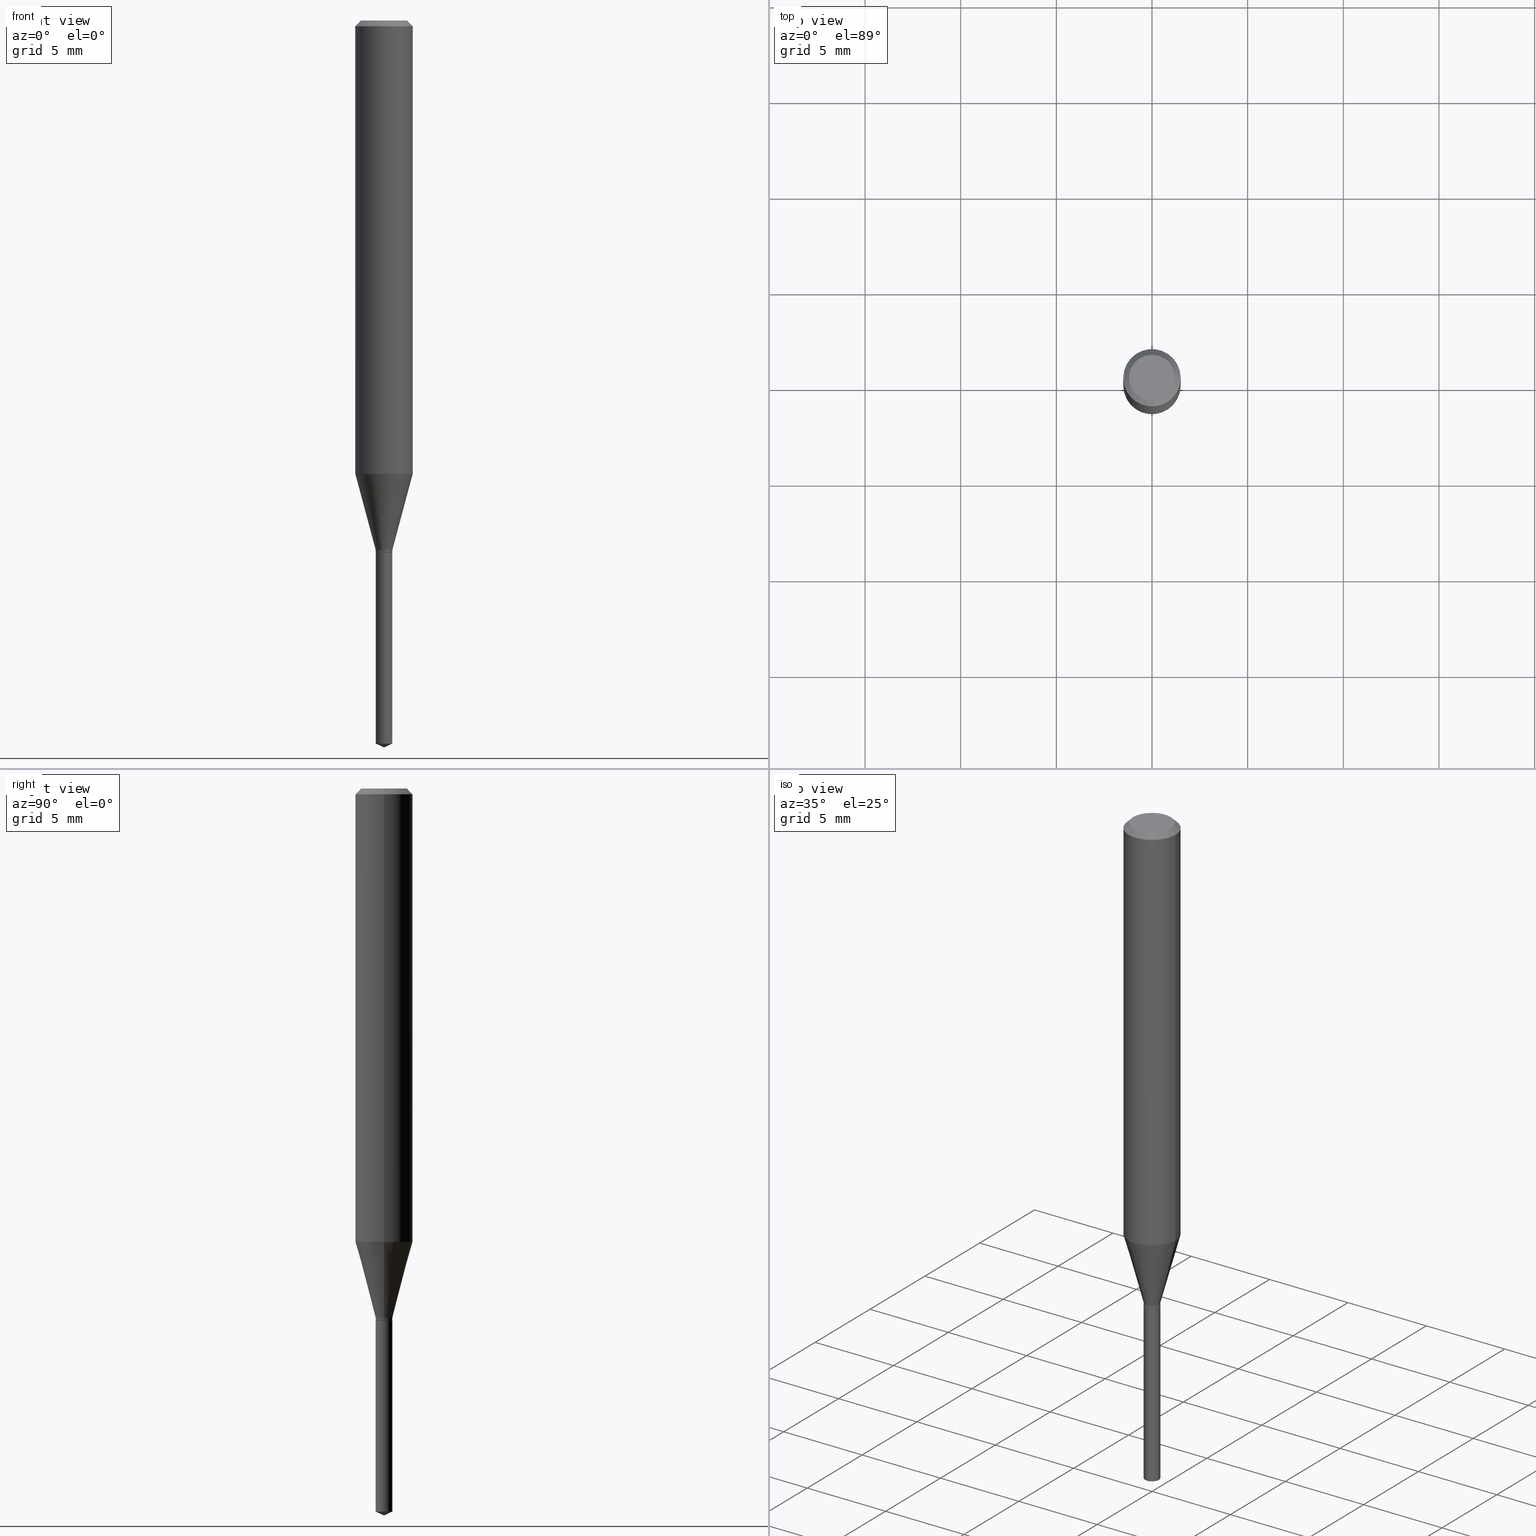
[diagram: canonical four-view strip — front | top / right | iso, engineering-drawing reading convention]
A machine part, canonical four-view strip (front | top / right | iso — engineering-drawing reading convention). The complete STEP part file that produces these views, byte-faithful:
ISO-10303-21;
HEADER;
FILE_DESCRIPTION (( 'STEP AP203' ),
    '1' );
FILE_NAME ('07465.STEP',
    '2024-04-23T21:44:41',
    ( '' ),
    ( '' ),
    'SwSTEP 2.0',
    'SolidWorks 2023',
    '' );
FILE_SCHEMA (( 'CONFIG_CONTROL_DESIGN' ));
ENDSEC;

DATA;
#1 = EDGE_LOOP ( 'NONE', ( #55, #355 ) ) ;
#2 = AXIS2_PLACEMENT_3D ( 'NONE', #422, #232, #120 ) ;
#3 = CONICAL_SURFACE ( 'NONE', #69, 0.01714999999999999858, 0.2617993877991500740 ) ;
#4 = FACE_OUTER_BOUND ( 'NONE', #215, .T. ) ;
#5 = FACE_OUTER_BOUND ( 'NONE', #1, .T. ) ;
#6 = CALENDAR_DATE ( 2024, 23, 4 ) ;
#7 = CYLINDRICAL_SURFACE ( 'NONE', #428, 0.05905000000000005383 ) ;
#8 = EDGE_CURVE ( 'NONE', #467, #331, #358, .T. ) ;
#9 = VECTOR ( 'NONE', #236, 39.37007874015747433 ) ;
#10 = VECTOR ( 'NONE', #401, 39.37007874015748143 ) ;
#11 = DIRECTION ( 'NONE',  ( 1.000000000000000000, -6.982962677686279332E-15, 0.000000000000000000 ) ) ;
#12 = CARTESIAN_POINT ( 'NONE',  ( -0.01714999999999999858, -3.689792098432204393E-15, -1.089399999999999924 ) ) ;
#13 = ORIENTED_EDGE ( 'NONE', *, *, #352, .F. ) ;
#14 = ADVANCED_FACE ( 'NONE', ( #264 ), #256, .T. ) ;
#15 = DIRECTION ( 'NONE',  ( -6.982962677686266711E-15, -1.000000000000000000, 3.520397390770495680E-15 ) ) ;
#16 = VERTEX_POINT ( 'NONE', #192 ) ;
#17 = FACE_OUTER_BOUND ( 'NONE', #342, .T. ) ;
#18 = ORIENTED_EDGE ( 'NONE', *, *, #30, .F. ) ;
#19 = FACE_OUTER_BOUND ( 'NONE', #60, .T. ) ;
#20 = ORIENTED_EDGE ( 'NONE', *, *, #231, .F. ) ;
#21 = DIRECTION ( 'NONE',  ( -2.445468806185136597E-29, 3.491481338843145583E-15, 1.000000000000000000 ) ) ;
#22 = ORIENTED_EDGE ( 'NONE', *, *, #274, .F. ) ;
#23 = LINE ( 'NONE', #58, #78 ) ;
#24 = ORIENTED_EDGE ( 'NONE', *, *, #454, .F. ) ;
#25 = AXIS2_PLACEMENT_3D ( 'NONE', #191, #67, #417 ) ;
#26 = CIRCLE ( 'NONE', #140, 0.01714999999999999858 ) ;
#27 = DATE_TIME_ROLE ( 'creation_date' ) ;
#28 = ORIENTED_EDGE ( 'NONE', *, *, #180, .T. ) ;
#29 = DESIGN_CONTEXT ( 'detailed design', #99, 'design' ) ;
#30 = EDGE_CURVE ( 'NONE', #283, #250, #184, .T. ) ;
#31 = DIRECTION ( 'NONE',  ( -2.445468806185136597E-29, 3.491481338843145583E-15, 1.000000000000000000 ) ) ;
#32 = LINE ( 'NONE', #185, #280 ) ;
#33 = DIRECTION ( 'NONE',  ( 1.000000000000000000, -6.982962677686279332E-15, 0.000000000000000000 ) ) ;
#34 = FACE_OUTER_BOUND ( 'NONE', #174, .T. ) ;
#35 = AXIS2_PLACEMENT_3D ( 'NONE', #419, #166, #463 ) ;
#36 = LOCAL_TIME ( 17, 44, 41.00000000000000000, #260 ) ;
#37 = CARTESIAN_POINT ( 'NONE',  ( 2.664093717458087237E-29, -3.803619770535721859E-15, -1.089399999999999924 ) ) ;
#38 = PLANE ( 'NONE',  #25 ) ;
#39 = ADVANCED_BREP_SHAPE_REPRESENTATION ( '07465', ( #103, #94, #248 ), #436 ) ;
#40 = EDGE_CURVE ( 'NONE', #250, #118, #219, .T. ) ;
#41 = DIRECTION ( 'NONE',  ( 1.000000000000000000, -6.982962677686278543E-15, 0.000000000000000000 ) ) ;
#42 = CARTESIAN_POINT ( 'NONE',  ( 2.888098660104663328E-31, -4.123439461173779030E-17, -0.01181000000000006871 ) ) ;
#43 = AXIS2_PLACEMENT_3D ( 'NONE', #381, #150, #41 ) ;
#44 = DIRECTION ( 'NONE',  ( 1.000000000000000000, -6.982962677686278543E-15, 0.000000000000000000 ) ) ;
#45 = ADVANCED_FACE ( 'NONE', ( #110 ), #338, .T. ) ;
#46 = CARTESIAN_POINT ( 'NONE',  ( -9.261968845786000133E-28, 1.322362114038720264E-13, 37.87397874015748300 ) ) ;
#47 = DIRECTION ( 'NONE',  ( 2.438088387897960049E-29, -3.491481338843145188E-15, -1.000000000000000000 ) ) ;
#48 = PRODUCT_RELATED_PRODUCT_CATEGORY ( 'detail', '', ( #125 ) ) ;
#49 = AXIS2_PLACEMENT_3D ( 'NONE', #42, #348, #456 ) ;
#50 = LOCAL_TIME ( 17, 44, 41.00000000000000000, #388 ) ;
#51 = DIRECTION ( 'NONE',  ( -2.445468806185136597E-29, 3.491481338843145583E-15, 1.000000000000000000 ) ) ;
#52 = VERTEX_POINT ( 'NONE', #147 ) ;
#53 = ADVANCED_FACE ( 'NONE', ( #307 ), #38, .F. ) ;
#54 = DIRECTION ( 'NONE',  ( 1.000000000000000000, -6.982962677686267499E-15, 0.000000000000000000 ) ) ;
#55 = ORIENTED_EDGE ( 'NONE', *, *, #437, .T. ) ;
#56 = LINE ( 'NONE', #128, #290 ) ;
#57 = ORIENTED_EDGE ( 'NONE', *, *, #367, .T. ) ;
#58 = CARTESIAN_POINT ( 'NONE',  ( -0.05905000000000005383, 4.195754854663395423E-16, -2.904631170795524694E-30 ) ) ;
#59 = VECTOR ( 'NONE', #245, 39.37007874015748143 ) ;
#60 = EDGE_LOOP ( 'NONE', ( #134, #105 ) ) ;
#61 = DIRECTION ( 'NONE',  ( -6.328713451373360701E-15, -0.9063077870366472721, 0.4226182617407052144 ) ) ;
#62 = CC_DESIGN_PERSON_AND_ORGANIZATION_ASSIGNMENT ( #225, #374, ( #329 ) ) ;
#63 = ORIENTED_EDGE ( 'NONE', *, *, #332, .F. ) ;
#64 = CARTESIAN_POINT ( 'NONE',  ( 0.05904999999999999832, -4.463468013801466955E-16, -0.01181000000000006871 ) ) ;
#65 = ORIENTED_EDGE ( 'NONE', *, *, #303, .F. ) ;
#66 = DATE_AND_TIME ( #253, #235 ) ;
#67 = DIRECTION ( 'NONE',  ( -2.438088387897960049E-29, 3.491481338843145188E-15, 1.000000000000000000 ) ) ;
#68 = AXIS2_PLACEMENT_3D ( 'NONE', #451, #79, #379 ) ;
#69 = AXIS2_PLACEMENT_3D ( 'NONE', #176, #471, #104 ) ;
#70 = ADVANCED_FACE ( 'NONE', ( #119 ), #154, .T. ) ;
#71 = APPROVAL_DATE_TIME ( #255, #151 ) ;
#72 = ORIENTED_EDGE ( 'NONE', *, *, #490, .T. ) ;
#73 = APPROVAL_STATUS ( 'not_yet_approved' ) ;
#74 = CARTESIAN_POINT ( 'NONE',  ( 2.676565608369631794E-29, -3.821426325363822773E-15, -1.094499999999999806 ) ) ;
#75 =( LENGTH_UNIT ( ) NAMED_UNIT ( * ) SI_UNIT ( $, .METRE. ) );
#76 = ORIENTED_EDGE ( 'NONE', *, *, #289, .T. ) ;
#77 = CIRCLE ( 'NONE', #452, 0.01715000000000000205 ) ;
#78 = VECTOR ( 'NONE', #181, 39.37007874015748143 ) ;
#79 = DIRECTION ( 'NONE',  ( -2.445468806185136597E-29, 3.491481338843145583E-15, 1.000000000000000000 ) ) ;
#80 = DIRECTION ( 'NONE',  ( -2.445468806185136597E-29, 3.491481338843145583E-15, 1.000000000000000000 ) ) ;
#81 = FACE_OUTER_BOUND ( 'NONE', #408, .T. ) ;
#82 = CC_DESIGN_DATE_AND_TIME_ASSIGNMENT ( #386, #86, ( #117 ) ) ;
#83 = CONICAL_SURFACE ( 'NONE', #343, 0.01714999999999999858, 0.2617993877991500740 ) ;
#84 = FACE_OUTER_BOUND ( 'NONE', #294, .T. ) ;
#85 = CARTESIAN_POINT ( 'NONE',  ( 0.000000000000000000, 0.000000000000000000, 0.000000000000000000 ) ) ;
#86 = DATE_TIME_ROLE ( 'classification_date' ) ;
#87 = DIRECTION ( 'NONE',  ( -6.982962677686266711E-15, -1.000000000000000000, 0.000000000000000000 ) ) ;
#88 = CC_DESIGN_PERSON_AND_ORGANIZATION_ASSIGNMENT ( #478, #304, ( #125 ) ) ;
#89 = VECTOR ( 'NONE', #336, 39.37007874015747433 ) ;
#90 = DIRECTION ( 'NONE',  ( -2.445470214571802116E-29, 3.491479321953280158E-15, 1.000000000000000000 ) ) ;
#91 = DIMENSIONAL_EXPONENTS ( 1.000000000000000000, 0.000000000000000000, 0.000000000000000000, 0.000000000000000000, 0.000000000000000000, 0.000000000000000000, 0.000000000000000000 ) ;
#92 = FACE_OUTER_BOUND ( 'NONE', #472, .T. ) ;
#93 = VERTEX_POINT ( 'NONE', #371 ) ;
#94 = MANIFOLD_SOLID_BREP ( 'Body-Move/Copy2[2]', #247 ) ;
#95 = CARTESIAN_POINT ( 'NONE',  ( 0.04724000000000000421, -3.852183633974369345E-16, -3.380025165621689721E-19 ) ) ;
#96 = ORIENTED_EDGE ( 'NONE', *, *, #361, .F. ) ;
#97 = EDGE_CURVE ( 'NONE', #118, #132, #373, .T. ) ;
#98 = CARTESIAN_POINT ( 'NONE',  ( 8.265746106709734507E-48, -1.180129479067563789E-33, -3.380025165646692144E-19 ) ) ;
#99 = APPLICATION_CONTEXT ( 'configuration controlled 3d designs of mechanical parts and assemblies' ) ;
#100 = CIRCLE ( 'NONE', #257, 0.04724000000000000421 ) ;
#101 = ORIENTED_EDGE ( 'NONE', *, *, #484, .T. ) ;
#102 = AXIS2_PLACEMENT_3D ( 'NONE', #393, #356, #227 ) ;
#103 = MANIFOLD_SOLID_BREP ( 'Body-Move/Copy2[1]', #129 ) ;
#104 = DIRECTION ( 'NONE',  ( 1.000000000000000000, -6.982962677686279332E-15, 0.000000000000000000 ) ) ;
#105 = ORIENTED_EDGE ( 'NONE', *, *, #395, .T. ) ;
#106 = ORIENTED_EDGE ( 'NONE', *, *, #279, .F. ) ;
#107 = CALENDAR_DATE ( 2024, 23, 4 ) ;
#108 = CARTESIAN_POINT ( 'NONE',  ( -1.197578099222926869E-16, -0.01715000000000382191, -1.094499999999999806 ) ) ;
#109 = AXIS2_PLACEMENT_3D ( 'NONE', #469, #21, #278 ) ;
#110 = FACE_OUTER_BOUND ( 'NONE', #320, .T. ) ;
#111 = UNCERTAINTY_MEASURE_WITH_UNIT (LENGTH_MEASURE( 1.000000000000000082E-05 ), #295, 'distance_accuracy_value', 'NONE');
#112 = DATE_AND_TIME ( #448, #36 ) ;
#113 = DIRECTION ( 'NONE',  ( 1.000000000000000000, -6.982962677686266711E-15, 4.876176775795935793E-29 ) ) ;
#114 = EDGE_CURVE ( 'NONE', #153, #177, #443, .T. ) ;
#115 = ORIENTED_EDGE ( 'NONE', *, *, #114, .T. ) ;
#116 = CIRCLE ( 'NONE', #2, 0.01714999999999999858 ) ;
#117 = SECURITY_CLASSIFICATION ( '', '', #200 ) ;
#118 = VERTEX_POINT ( 'NONE', #258 ) ;
#119 = FACE_OUTER_BOUND ( 'NONE', #357, .T. ) ;
#120 = DIRECTION ( 'NONE',  ( -6.982962677686266711E-15, -1.000000000000000000, 0.000000000000000000 ) ) ;
#121 = EDGE_CURVE ( 'NONE', #331, #283, #32, .T. ) ;
#122 = PERSON_AND_ORGANIZATION_ROLE ( 'classification_officer' ) ;
#123 = CARTESIAN_POINT ( 'NONE',  ( 8.265746106709734507E-48, -1.180129479067563789E-33, -3.380025165646692144E-19 ) ) ;
#124 = FACE_OUTER_BOUND ( 'NONE', #254, .T. ) ;
#125 = PRODUCT ( '07465', '07465', '', ( #404 ) ) ;
#126 = ADVANCED_FACE ( 'NONE', ( #34 ), #410, .T. ) ;
#127 = DIRECTION ( 'NONE',  ( -6.982962677686266711E-15, -1.000000000000000000, 0.000000000000000000 ) ) ;
#128 = CARTESIAN_POINT ( 'NONE',  ( 1.218580791828839191E-16, 0.01714999999999617525, -1.094499999999999806 ) ) ;
#129 = CLOSED_SHELL ( 'NONE', ( #266, #193, #346, #126, #424 ) ) ;
#130 = AXIS2_PLACEMENT_3D ( 'NONE', #427, #90, #360 ) ;
#131 = CARTESIAN_POINT ( 'NONE',  ( -9.261968845786000133E-28, 1.322362114038720264E-13, 37.87397874015748300 ) ) ;
#132 = VERTEX_POINT ( 'NONE', #311 ) ;
#133 = DIRECTION ( 'NONE',  ( 2.445470214571801836E-29, -3.491479321953280158E-15, -1.000000000000000000 ) ) ;
#134 = ORIENTED_EDGE ( 'NONE', *, *, #135, .T. ) ;
#135 = EDGE_CURVE ( 'NONE', #177, #241, #195, .T. ) ;
#136 = CARTESIAN_POINT ( 'NONE',  ( 2.676565608369631794E-29, -3.821426325363822773E-15, -1.094499999999999806 ) ) ;
#137 = EDGE_LOOP ( 'NONE', ( #218, #186, #285 ) ) ;
#138 = LINE ( 'NONE', #64, #59 ) ;
#139 = AXIS2_PLACEMENT_3D ( 'NONE', #270, #316, #87 ) ;
#140 = AXIS2_PLACEMENT_3D ( 'NONE', #415, #380, #488 ) ;
#141 = ORIENTED_EDGE ( 'NONE', *, *, #135, .F. ) ;
#142 = EDGE_CURVE ( 'NONE', #325, #93, #309, .T. ) ;
#143 = LENGTH_MEASURE_WITH_UNIT ( LENGTH_MEASURE( 0.02539999999999999897 ), #75 );
#144 = ORIENTED_EDGE ( 'NONE', *, *, #237, .F. ) ;
#145 = APPROVAL ( #239, 'UNSPECIFIED' ) ;
#146 = ORIENTED_EDGE ( 'NONE', *, *, #340, .F. ) ;
#147 = CARTESIAN_POINT ( 'NONE',  ( 0.01714999999999999858, -3.923377580458041737E-15, -1.089399999999999924 ) ) ;
#148 = AXIS2_PLACEMENT_3D ( 'NONE', #277, #425, #205 ) ;
#149 = DIRECTION ( 'NONE',  ( 0.000000000000000000, 0.000000000000000000, 1.000000000000000000 ) ) ;
#150 = DIRECTION ( 'NONE',  ( -2.445468806185136597E-29, 3.491481338843145583E-15, 1.000000000000000000 ) ) ;
#151 = APPROVAL ( #73, 'UNSPECIFIED' ) ;
#152 = CARTESIAN_POINT ( 'NONE',  ( 0.000000000000000000, 0.000000000000000000, 0.000000000000000000 ) ) ;
#153 = VERTEX_POINT ( 'NONE', #464 ) ;
#154 = CONICAL_SURFACE ( 'NONE', #351, 0.05904999999999999832, 0.7853981633974452814 ) ;
#155 = APPROVAL_PERSON_ORGANIZATION ( #301, #403, #450 ) ;
#156 = EDGE_CURVE ( 'NONE', #292, #325, #203, .T. ) ;
#157 = DIRECTION ( 'NONE',  ( -2.445468806185136597E-29, 3.491481338843145583E-15, 1.000000000000000000 ) ) ;
#158 = COORDINATED_UNIVERSAL_TIME_OFFSET ( 5, 0, .BEHIND. ) ;
#159 = FACE_OUTER_BOUND ( 'NONE', #137, .T. ) ;
#160 = APPLICATION_CONTEXT ( 'configuration controlled 3d designs of mechanical parts and assemblies' ) ;
#161 = PERSON_AND_ORGANIZATION_ROLE ( 'design_supplier' ) ;
#162 = DIRECTION ( 'NONE',  ( -2.445468806185136597E-29, 3.491481338843145583E-15, 1.000000000000000000 ) ) ;
#163 = ORIENTED_EDGE ( 'NONE', *, *, #237, .T. ) ;
#164 = AXIS2_PLACEMENT_3D ( 'NONE', #384, #51, #44 ) ;
#165 = CIRCLE ( 'NONE', #445, 0.01714999999999999858 ) ;
#166 = DIRECTION ( 'NONE',  ( 2.445468806185136597E-29, -3.491481338843145583E-15, -1.000000000000000000 ) ) ;
#167 = PLANE ( 'NONE',  #288 ) ;
#168 = ORIENTED_EDGE ( 'NONE', *, *, #383, .T. ) ;
#169 = DIRECTION ( 'NONE',  ( -2.445470214571802396E-29, 3.491479321953280158E-15, 1.000000000000000000 ) ) ;
#170 = ORIENTED_EDGE ( 'NONE', *, *, #332, .T. ) ;
#171 = AXIS2_PLACEMENT_3D ( 'NONE', #131, #172, #15 ) ;
#172 = DIRECTION ( 'NONE',  ( -2.445470214571802116E-29, 3.491479321953280158E-15, 1.000000000000000000 ) ) ;
#173 = CC_DESIGN_DATE_AND_TIME_ASSIGNMENT ( #66, #27, ( #326 ) ) ;
#174 = EDGE_LOOP ( 'NONE', ( #146, #210, #115, #433 ) ) ;
#175 = PRODUCT_DEFINITION_SHAPE ( 'NONE', 'NONE',  #326 ) ;
#176 = CARTESIAN_POINT ( 'NONE',  ( 2.664093717458087237E-29, -3.803619770535721859E-15, -1.089399999999999924 ) ) ;
#177 = VERTEX_POINT ( 'NONE', #460 ) ;
#178 = LINE ( 'NONE', #330, #485 ) ;
#179 = EDGE_LOOP ( 'NONE', ( #228, #479, #323, #63 ) ) ;
#180 = EDGE_CURVE ( 'NONE', #132, #93, #211, .T. ) ;
#181 = DIRECTION ( 'NONE',  ( -2.445468806185136877E-29, 3.491481338843145188E-15, 1.000000000000000000 ) ) ;
#182 = ORIENTED_EDGE ( 'NONE', *, *, #383, .F. ) ;
#183 = APPROVAL_ROLE ( '' ) ;
#184 = LINE ( 'NONE', #268, #89 ) ;
#185 = CARTESIAN_POINT ( 'NONE',  ( -0.01715000000000000205, 1.218580791828571964E-16, -8.435973679787163407E-31 ) ) ;
#186 = ORIENTED_EDGE ( 'NONE', *, *, #224, .T. ) ;
#187 = ADVANCED_FACE ( 'NONE', ( #4 ), #321, .T. ) ;
#188 = VECTOR ( 'NONE', #344, 39.37007874015748143 ) ;
#189 = AXIS2_PLACEMENT_3D ( 'NONE', #434, #133, #206 ) ;
#190 =( NAMED_UNIT ( * ) PLANE_ANGLE_UNIT ( ) SI_UNIT ( $, .RADIAN. ) );
#191 = CARTESIAN_POINT ( 'NONE',  ( 2.676565608369631794E-29, -3.821426325363822773E-15, -1.094499999999999806 ) ) ;
#192 = CARTESIAN_POINT ( 'NONE',  ( 0.01664999999999999813, -3.937692653947298855E-15, -1.094499999999999806 ) ) ;
#193 = ADVANCED_FACE ( 'NONE', ( #159 ), #376, .T. ) ;
#194 = DIRECTION ( 'NONE',  ( -2.445470214571802116E-29, 3.491479321953280158E-15, 1.000000000000000000 ) ) ;
#195 = CIRCLE ( 'NONE', #139, 0.01714999999999999858 ) ;
#196 = AXIS2_PLACEMENT_3D ( 'NONE', #136, #392, #291 ) ;
#197 = SHAPE_DEFINITION_REPRESENTATION ( #175, #39 ) ;
#198 = DIRECTION ( 'NONE',  ( -1.000000000000000000, 6.982962677686265922E-15, -4.876176775795935793E-29 ) ) ;
#199 = CARTESIAN_POINT ( 'NONE',  ( 2.664093717458087237E-29, -3.803619770535721859E-15, -1.089399999999999924 ) ) ;
#200 = SECURITY_CLASSIFICATION_LEVEL ( 'unclassified' ) ;
#201 = CARTESIAN_POINT ( 'NONE',  ( 0.01714999999999999858, -3.923377580458041737E-15, -1.089399999999999924 ) ) ;
#202 = ADVANCED_FACE ( 'NONE', ( #124 ), #306, .T. ) ;
#203 = CIRCLE ( 'NONE', #406, 0.04724000000000000421 ) ;
#204 = CIRCLE ( 'NONE', #345, 0.01714999999999999858 ) ;
#205 = DIRECTION ( 'NONE',  ( 1.000000000000000000, -6.982962677686278543E-15, 0.000000000000000000 ) ) ;
#206 = DIRECTION ( 'NONE',  ( 6.982962677686265922E-15, 1.000000000000000000, -3.491479321953280158E-15 ) ) ;
#207 = ORIENTED_EDGE ( 'NONE', *, *, #303, .T. ) ;
#208 = ADVANCED_FACE ( 'NONE', ( #84 ), #7, .T. ) ;
#209 = CARTESIAN_POINT ( 'NONE',  ( -0.01664999999999999813, -3.700471732685654510E-15, -1.094499999999999806 ) ) ;
#210 = ORIENTED_EDGE ( 'NONE', *, *, #231, .T. ) ;
#211 = CIRCLE ( 'NONE', #49, 0.05904999999999999832 ) ;
#212 = CARTESIAN_POINT ( 'NONE',  ( -0.04724000000000000421, 3.504923541997677355E-16, -3.380025165670481712E-19 ) ) ;
#213 = ORIENTED_EDGE ( 'NONE', *, *, #437, .F. ) ;
#214 = LINE ( 'NONE', #282, #281 ) ;
#215 = EDGE_LOOP ( 'NONE', ( #300, #207, #28, #449 ) ) ;
#216 = ADVANCED_FACE ( 'NONE', ( #81 ), #83, .T. ) ;
#217 = CARTESIAN_POINT ( 'NONE',  ( -0.01715000000000000205, -3.689792098432204393E-15, -1.093999999999999861 ) ) ;
#218 = ORIENTED_EDGE ( 'NONE', *, *, #289, .F. ) ;
#219 = CIRCLE ( 'NONE', #68, 0.05905000000000010935 ) ;
#220 = APPROVAL_PERSON_ORGANIZATION ( #409, #151, #183 ) ;
#221 = DIRECTION ( 'NONE',  ( -1.000000000000000000, 6.982962677686266711E-15, 0.000000000000000000 ) ) ;
#222 = PERSON_AND_ORGANIZATION ( #262, #229 ) ;
#223 = ORIENTED_EDGE ( 'NONE', *, *, #454, .T. ) ;
#224 = EDGE_CURVE ( 'NONE', #364, #397, #272, .T. ) ;
#225 = PERSON_AND_ORGANIZATION ( #262, #229 ) ;
#226 = DIRECTION ( 'NONE',  ( -2.445470214571802116E-29, 3.491479321953280158E-15, 1.000000000000000000 ) ) ;
#227 = DIRECTION ( 'NONE',  ( 1.000000000000000000, -6.982962677686266711E-15, 4.876176775795935793E-29 ) ) ;
#228 = ORIENTED_EDGE ( 'NONE', *, *, #8, .T. ) ;
#229 = ORGANIZATION ( 'UNSPECIFIED', 'UNSPECIFIED', '' ) ;
#230 = CARTESIAN_POINT ( 'NONE',  ( 2.675342873966538993E-29, -3.819680584694400481E-15, -1.093999999999999861 ) ) ;
#231 = EDGE_CURVE ( 'NONE', #397, #153, #116, .T. ) ;
#232 = DIRECTION ( 'NONE',  ( -2.445470214571802116E-29, 3.491479321953280158E-15, 1.000000000000000000 ) ) ;
#233 = CARTESIAN_POINT ( 'NONE',  ( 3.658668015054778287E-29, -5.223602213574301462E-15, -1.496099999999999985 ) ) ;
#234 = CIRCLE ( 'NONE', #148, 0.01664999999999999813 ) ;
#235 = LOCAL_TIME ( 17, 44, 41.00000000000000000, #412 ) ;
#236 = DIRECTION ( 'NONE',  ( 0.2588190451025213501, 1.565188264969621968E-15, 0.9659258262890682012 ) ) ;
#237 = EDGE_CURVE ( 'NONE', #52, #118, #318, .T. ) ;
#238 = CARTESIAN_POINT ( 'NONE',  ( 1.218580791828936073E-16, 0.01714999999999617525, -1.094499999999999806 ) ) ;
#239 = APPROVAL_STATUS ( 'not_yet_approved' ) ;
#240 = CARTESIAN_POINT ( 'NONE',  ( 2.675342873966538993E-29, -3.819680584694400481E-15, -1.093999999999999861 ) ) ;
#241 = VERTEX_POINT ( 'NONE', #238 ) ;
#242 = CARTESIAN_POINT ( 'NONE',  ( 2.281688597855063400E-29, -3.257646607600614684E-15, -0.9330270711628638747 ) ) ;
#243 = CYLINDRICAL_SURFACE ( 'NONE', #102, 0.05905000000000005383 ) ;
#244 = ORIENTED_EDGE ( 'NONE', *, *, #97, .T. ) ;
#245 = DIRECTION ( 'NONE',  ( 0.7071067811865453523, -7.319954787623248157E-15, -0.7071067811865496822 ) ) ;
#246 = ORIENTED_EDGE ( 'NONE', *, *, #340, .T. ) ;
#247 = CLOSED_SHELL ( 'NONE', ( #202, #187, #208, #297, #447, #45, #216, #466, #70, #259, #53, #14 ) ) ;
#248 = AXIS2_PLACEMENT_3D ( 'NONE', #337, #149, #482 ) ;
#249 = FACE_OUTER_BOUND ( 'NONE', #179, .T. ) ;
#250 = VERTEX_POINT ( 'NONE', #271 ) ;
#251 = LINE ( 'NONE', #396, #10 ) ;
#252 = ORIENTED_EDGE ( 'NONE', *, *, #279, .T. ) ;
#253 = CALENDAR_DATE ( 2024, 23, 4 ) ;
#254 = EDGE_LOOP ( 'NONE', ( #362, #223, #413, #96 ) ) ;
#255 = DATE_AND_TIME ( #107, #369 ) ;
#256 = CONICAL_SURFACE ( 'NONE', #43, 0.01664999999999999813, 0.7853981633974141952 ) ;
#257 = AXIS2_PLACEMENT_3D ( 'NONE', #98, #354, #465 ) ;
#258 = CARTESIAN_POINT ( 'NONE',  ( 0.05905000000000010935, -3.669990553717989210E-15, -0.9330270711628638747 ) ) ;
#259 = ADVANCED_FACE ( 'NONE', ( #5 ), #167, .F. ) ;
#260 = COORDINATED_UNIVERSAL_TIME_OFFSET ( 5, 0, .BEHIND. ) ;
#261 = ORIENTED_EDGE ( 'NONE', *, *, #180, .F. ) ;
#262 = PERSON ( 'UNSPECIFIED', 'UNSPECIFIED', 'UNSPECIFIED', ('UNSPECIFIED'), ('UNSPECIFIED'), ('UNSPECIFIED') ) ;
#263 = APPROVAL_DATE_TIME ( #112, #403 ) ;
#264 = FACE_OUTER_BOUND ( 'NONE', #435, .T. ) ;
#265 = PERSON_AND_ORGANIZATION_ROLE ( 'creator' ) ;
#266 = ADVANCED_FACE ( 'NONE', ( #347 ), #421, .T. ) ;
#267 = VECTOR ( 'NONE', #382, 39.37007874015748143 ) ;
#268 = CARTESIAN_POINT ( 'NONE',  ( -0.01714999999999999858, -3.681761691352864687E-15, -1.089399999999999924 ) ) ;
#269 = ORIENTED_EDGE ( 'NONE', *, *, #473, .T. ) ;
#270 = CARTESIAN_POINT ( 'NONE',  ( 2.676565608369631794E-29, -3.821426325363822773E-15, -1.094499999999999806 ) ) ;
#271 = CARTESIAN_POINT ( 'NONE',  ( -0.05905000000000010935, -2.838071122134274797E-15, -0.9330270711628638747 ) ) ;
#272 = LINE ( 'NONE', #233, #188 ) ;
#273 = VECTOR ( 'NONE', #319, 39.37007874015748854 ) ;
#274 = EDGE_CURVE ( 'NONE', #16, #339, #234, .T. ) ;
#275 = DIRECTION ( 'NONE',  ( 1.000000000000000000, -6.982962677686266711E-15, 4.876176775795935793E-29 ) ) ;
#276 = PERSON_AND_ORGANIZATION ( #262, #229 ) ;
#277 = CARTESIAN_POINT ( 'NONE',  ( 2.676565608369631794E-29, -3.821426325363822773E-15, -1.094499999999999806 ) ) ;
#278 = DIRECTION ( 'NONE',  ( 1.000000000000000000, -6.982962677686266711E-15, 0.000000000000000000 ) ) ;
#279 = EDGE_CURVE ( 'NONE', #331, #467, #77, .T. ) ;
#280 = VECTOR ( 'NONE', #483, 39.37007874015748143 ) ;
#281 = VECTOR ( 'NONE', #363, 39.37007874015748854 ) ;
#282 = CARTESIAN_POINT ( 'NONE',  ( -0.01664999999999999813, -3.703120959859765711E-15, -1.094499999999999806 ) ) ;
#283 = VERTEX_POINT ( 'NONE', #12 ) ;
#284 = CARTESIAN_POINT ( 'NONE',  ( 0.000000000000000000, 0.000000000000000000, 0.000000000000000000 ) ) ;
#285 = ORIENTED_EDGE ( 'NONE', *, *, #484, .F. ) ;
#286 = CARTESIAN_POINT ( 'NONE',  ( 1.218580791828935333E-16, 0.01714999999999479788, -1.488102823662641683 ) ) ;
#287 = ORIENTED_EDGE ( 'NONE', *, *, #121, .F. ) ;
#288 = AXIS2_PLACEMENT_3D ( 'NONE', #387, #47, #198 ) ;
#289 = EDGE_CURVE ( 'NONE', #364, #153, #178, .T. ) ;
#290 = VECTOR ( 'NONE', #169, 39.37007874015748143 ) ;
#291 = DIRECTION ( 'NONE',  ( 1.000000000000000000, -6.982962677686278543E-15, 0.000000000000000000 ) ) ;
#292 = VERTEX_POINT ( 'NONE', #95 ) ;
#293 = APPROVAL_STATUS ( 'not_yet_approved' ) ;
#294 = EDGE_LOOP ( 'NONE', ( #328, #57, #261, #390 ) ) ;
#295 =( CONVERSION_BASED_UNIT ( 'INCH', #143 ) LENGTH_UNIT ( ) NAMED_UNIT ( #91 ) );
#296 = DIRECTION ( 'NONE',  ( -2.445468806185136877E-29, 3.491481338843145188E-15, 1.000000000000000000 ) ) ;
#297 = ADVANCED_FACE ( 'NONE', ( #438 ), #3, .T. ) ;
#298 = DIRECTION ( 'NONE',  ( -2.445468806185136597E-29, 3.491481338843145583E-15, 1.000000000000000000 ) ) ;
#299 = APPROVAL_PERSON_ORGANIZATION ( #276, #145, #423 ) ;
#300 = ORIENTED_EDGE ( 'NONE', *, *, #156, .F. ) ;
#301 = PERSON_AND_ORGANIZATION ( #262, #229 ) ;
#302 = DIRECTION ( 'NONE',  ( -2.445468806185136597E-29, 3.491481338843145583E-15, 1.000000000000000000 ) ) ;
#303 = EDGE_CURVE ( 'NONE', #292, #132, #138, .T. ) ;
#304 = PERSON_AND_ORGANIZATION_ROLE ( 'design_owner' ) ;
#305 = ORIENTED_EDGE ( 'NONE', *, *, #40, .T. ) ;
#306 = CONICAL_SURFACE ( 'NONE', #164, 0.01664999999999999813, 0.7853981633974141952 ) ;
#307 = FACE_OUTER_BOUND ( 'NONE', #426, .T. ) ;
#308 = CC_DESIGN_APPROVAL ( #403, ( #326 ) ) ;
#309 = LINE ( 'NONE', #458, #267 ) ;
#310 = CALENDAR_DATE ( 2024, 23, 4 ) ;
#311 = CARTESIAN_POINT ( 'NONE',  ( 0.05904999999999999832, -4.535783407291118600E-16, -0.01181000000000006871 ) ) ;
#312 = DIRECTION ( 'NONE',  ( 1.000000000000000000, -6.982962677686266711E-15, 4.876185090822587894E-29 ) ) ;
#313 = VECTOR ( 'NONE', #446, 39.37007874015748143 ) ;
#314 = AXIS2_PLACEMENT_3D ( 'NONE', #230, #489, #455 ) ;
#315 = CC_DESIGN_APPROVAL ( #151, ( #329 ) ) ;
#316 = DIRECTION ( 'NONE',  ( -2.445470214571802116E-29, 3.491479321953280158E-15, 1.000000000000000000 ) ) ;
#317 = CC_DESIGN_PERSON_AND_ORGANIZATION_ASSIGNMENT ( #440, #265, ( #326 ) ) ;
#318 = LINE ( 'NONE', #201, #9 ) ;
#319 = DIRECTION ( 'NONE',  ( 0.7071067811865232589, -2.468850131082003836E-15, 0.7071067811865715536 ) ) ;
#320 = EDGE_LOOP ( 'NONE', ( #287, #252, #170, #402 ) ) ;
#321 = CONICAL_SURFACE ( 'NONE', #35, 0.05904999999999999832, 0.7853981633974452814 ) ;
#322 = PLANE ( 'NONE',  #189 ) ;
#323 = ORIENTED_EDGE ( 'NONE', *, *, #473, .F. ) ;
#324 = DIRECTION ( 'NONE',  ( 1.000000000000000000, -6.982962677686266711E-15, 4.876176775795935793E-29 ) ) ;
#325 = VERTEX_POINT ( 'NONE', #212 ) ;
#326 = PRODUCT_DEFINITION ( 'UNKNOWN', '', #329, #29 ) ;
#327 = CARTESIAN_POINT ( 'NONE',  ( 3.658667988020872822E-29, -5.223602213574301462E-15, -1.496099999999999985 ) ) ;
#328 = ORIENTED_EDGE ( 'NONE', *, *, #411, .T. ) ;
#329 = PRODUCT_DEFINITION_FORMATION_WITH_SPECIFIED_SOURCE ( 'ANY', '', #125, .NOT_KNOWN. ) ;
#330 = CARTESIAN_POINT ( 'NONE',  ( 3.658664905062460986E-29, -5.223606628546217219E-15, -1.496099999999999985 ) ) ;
#331 = VERTEX_POINT ( 'NONE', #217 ) ;
#332 = EDGE_CURVE ( 'NONE', #467, #52, #251, .T. ) ;
#333 = COORDINATED_UNIVERSAL_TIME_OFFSET ( 5, 0, .BEHIND. ) ;
#334 = DIRECTION ( 'NONE',  ( 2.445468806185136597E-29, -3.491481338843145583E-15, -1.000000000000000000 ) ) ;
#335 =( NAMED_UNIT ( * ) SI_UNIT ( $, .STERADIAN. ) SOLID_ANGLE_UNIT ( ) );
#336 = DIRECTION ( 'NONE',  ( -0.2588190451025213501, 5.211531920934551042E-15, 0.9659258262890682012 ) ) ;
#337 = CARTESIAN_POINT ( 'NONE',  ( 0.000000000000000000, 0.000000000000000000, 0.000000000000000000 ) ) ;
#338 = CYLINDRICAL_SURFACE ( 'NONE', #368, 0.01715000000000000205 ) ;
#339 = VERTEX_POINT ( 'NONE', #209 ) ;
#340 = EDGE_CURVE ( 'NONE', #397, #241, #56, .T. ) ;
#341 = DATE_AND_TIME ( #310, #50 ) ;
#342 = EDGE_LOOP ( 'NONE', ( #487, #76, #20 ) ) ;
#343 = AXIS2_PLACEMENT_3D ( 'NONE', #199, #162, #11 ) ;
#344 = DIRECTION ( 'NONE',  ( 6.439704144417016154E-15, 0.9063077870366501587, 0.4226182617406989417 ) ) ;
#345 = AXIS2_PLACEMENT_3D ( 'NONE', #37, #298, #33 ) ;
#346 = ADVANCED_FACE ( 'NONE', ( #17 ), #377, .T. ) ;
#347 = FACE_OUTER_BOUND ( 'NONE', #400, .T. ) ;
#348 = DIRECTION ( 'NONE',  ( -2.445468806185136597E-29, 3.491481338843145583E-15, 1.000000000000000000 ) ) ;
#349 = ORIENTED_EDGE ( 'NONE', *, *, #361, .T. ) ;
#350 = DIRECTION ( 'NONE',  ( -2.445470214571802116E-29, 3.491479321953280158E-15, 1.000000000000000000 ) ) ;
#351 = AXIS2_PLACEMENT_3D ( 'NONE', #405, #334, #221 ) ;
#352 = EDGE_CURVE ( 'NONE', #339, #16, #378, .T. ) ;
#353 = DIRECTION ( 'NONE',  ( 1.000000000000000000, -6.982962677686277755E-15, 0.000000000000000000 ) ) ;
#354 = DIRECTION ( 'NONE',  ( -2.445468806185136597E-29, 3.491481338843145583E-15, 1.000000000000000000 ) ) ;
#355 = ORIENTED_EDGE ( 'NONE', *, *, #156, .T. ) ;
#356 = DIRECTION ( 'NONE',  ( -2.445468806185136597E-29, 3.491481338843145583E-15, 1.000000000000000000 ) ) ;
#357 = EDGE_LOOP ( 'NONE', ( #65, #213, #439, #168 ) ) ;
#358 = CIRCLE ( 'NONE', #314, 0.01715000000000000205 ) ;
#359 = CC_DESIGN_APPROVAL ( #145, ( #117 ) ) ;
#360 = DIRECTION ( 'NONE',  ( -6.982962677686266711E-15, -1.000000000000000000, 0.000000000000000000 ) ) ;
#361 = EDGE_CURVE ( 'NONE', #16, #467, #432, .T. ) ;
#362 = ORIENTED_EDGE ( 'NONE', *, *, #274, .T. ) ;
#363 = DIRECTION ( 'NONE',  ( -0.7071067811865232589, 7.493145998870265808E-15, 0.7071067811865715536 ) ) ;
#364 = VERTEX_POINT ( 'NONE', #327 ) ;
#365 = CARTESIAN_POINT ( 'NONE',  ( 0.01664999999999999813, -3.937692653947298855E-15, -1.094499999999999806 ) ) ;
#366 = ORIENTED_EDGE ( 'NONE', *, *, #367, .F. ) ;
#367 = EDGE_CURVE ( 'NONE', #250, #93, #23, .T. ) ;
#368 = AXIS2_PLACEMENT_3D ( 'NONE', #152, #302, #113 ) ;
#369 = LOCAL_TIME ( 17, 44, 41.00000000000000000, #333 ) ;
#370 = DIRECTION ( 'NONE',  ( 1.000000000000000000, -6.982962677686279332E-15, 0.000000000000000000 ) ) ;
#371 = CARTESIAN_POINT ( 'NONE',  ( -0.05904999999999999832, -1.229865015639836319E-15, -0.01181000000000006871 ) ) ;
#372 = CARTESIAN_POINT ( 'NONE',  ( 0.01715000000000000205, -3.939438394616720359E-15, -1.093999999999999861 ) ) ;
#373 = LINE ( 'NONE', #481, #476 ) ;
#374 = PERSON_AND_ORGANIZATION_ROLE ( 'creator' ) ;
#375 = DIRECTION ( 'NONE',  ( -6.982962677686266711E-15, -1.000000000000000000, 0.000000000000000000 ) ) ;
#376 = CONICAL_SURFACE ( 'NONE', #444, 84.42940631927334039, 1.134464013796311344 ) ;
#377 = CONICAL_SURFACE ( 'NONE', #171, 84.42940631927334039, 1.134464013796311344 ) ;
#378 = CIRCLE ( 'NONE', #196, 0.01664999999999999813 ) ;
#379 = DIRECTION ( 'NONE',  ( 1.000000000000000000, -6.982962677686267499E-15, 0.000000000000000000 ) ) ;
#380 = DIRECTION ( 'NONE',  ( -2.445470214571802116E-29, 3.491479321953280158E-15, 1.000000000000000000 ) ) ;
#381 = CARTESIAN_POINT ( 'NONE',  ( 2.676565608369631794E-29, -3.821426325363822773E-15, -1.094499999999999806 ) ) ;
#382 = DIRECTION ( 'NONE',  ( -0.7071067811865453523, 2.468850131082234184E-15, -0.7071067811865496822 ) ) ;
#383 = EDGE_CURVE ( 'NONE', #93, #132, #468, .T. ) ;
#384 = CARTESIAN_POINT ( 'NONE',  ( 2.676565608369631794E-29, -3.821426325363822773E-15, -1.094499999999999806 ) ) ;
#385 = CARTESIAN_POINT ( 'NONE',  ( 2.676565608369631794E-29, -3.821426325363822773E-15, -1.094499999999999806 ) ) ;
#386 = DATE_AND_TIME ( #6, #477 ) ;
#387 = CARTESIAN_POINT ( 'NONE',  ( 4.132873053354867254E-48, -5.900647395337818946E-34, -1.690012582823346072E-19 ) ) ;
#388 = COORDINATED_UNIVERSAL_TIME_OFFSET ( 5, 0, .BEHIND. ) ;
#389 = DIRECTION ( 'NONE',  ( -2.445468806185136597E-29, 3.491481338843145583E-15, 1.000000000000000000 ) ) ;
#390 = ORIENTED_EDGE ( 'NONE', *, *, #97, .F. ) ;
#391 = CIRCLE ( 'NONE', #461, 0.05905000000000010935 ) ;
#392 = DIRECTION ( 'NONE',  ( -2.445468806185136597E-29, 3.491481338843145583E-15, 1.000000000000000000 ) ) ;
#393 = CARTESIAN_POINT ( 'NONE',  ( 0.000000000000000000, 0.000000000000000000, 0.000000000000000000 ) ) ;
#394 = EDGE_LOOP ( 'NONE', ( #269, #430, #441, #144 ) ) ;
#395 = EDGE_CURVE ( 'NONE', #241, #177, #398, .T. ) ;
#396 = CARTESIAN_POINT ( 'NONE',  ( 0.01715000000000000205, -1.197578099223194836E-16, 8.362643170490031118E-31 ) ) ;
#397 = VERTEX_POINT ( 'NONE', #286 ) ;
#398 = CIRCLE ( 'NONE', #130, 0.01714999999999999858 ) ;
#399 = CYLINDRICAL_SURFACE ( 'NONE', #416, 0.01715000000000000205 ) ;
#400 = EDGE_LOOP ( 'NONE', ( #101, #246, #141, #418 ) ) ;
#401 = DIRECTION ( 'NONE',  ( -2.445468806185136877E-29, 3.491481338843145188E-15, 1.000000000000000000 ) ) ;
#402 = ORIENTED_EDGE ( 'NONE', *, *, #490, .F. ) ;
#403 = APPROVAL ( #293, 'UNSPECIFIED' ) ;
#404 = MECHANICAL_CONTEXT ( 'NONE', #160, 'mechanical' ) ;
#405 = CARTESIAN_POINT ( 'NONE',  ( 2.888098660104663328E-31, -4.123439461173779030E-17, -0.01181000000000006871 ) ) ;
#406 = AXIS2_PLACEMENT_3D ( 'NONE', #123, #157, #312 ) ;
#407 = CC_DESIGN_SECURITY_CLASSIFICATION ( #117, ( #329 ) ) ;
#408 = EDGE_LOOP ( 'NONE', ( #18, #72, #163, #475 ) ) ;
#409 = PERSON_AND_ORGANIZATION ( #262, #229 ) ;
#410 = CYLINDRICAL_SURFACE ( 'NONE', #459, 0.01714999999999999858 ) ;
#411 = EDGE_CURVE ( 'NONE', #118, #250, #391, .T. ) ;
#412 = COORDINATED_UNIVERSAL_TIME_OFFSET ( 5, 0, .BEHIND. ) ;
#413 = ORIENTED_EDGE ( 'NONE', *, *, #8, .F. ) ;
#414 = AXIS2_PLACEMENT_3D ( 'NONE', #385, #350, #127 ) ;
#415 = CARTESIAN_POINT ( 'NONE',  ( 3.639109590007979236E-29, -5.195682445244359530E-15, -1.488102823662641683 ) ) ;
#416 = AXIS2_PLACEMENT_3D ( 'NONE', #284, #429, #324 ) ;
#417 = DIRECTION ( 'NONE',  ( 1.000000000000000000, -6.982962677686265922E-15, 4.876176775795935793E-29 ) ) ;
#418 = ORIENTED_EDGE ( 'NONE', *, *, #114, .F. ) ;
#419 = CARTESIAN_POINT ( 'NONE',  ( 2.888098660104663328E-31, -4.123439461173779030E-17, -0.01181000000000006871 ) ) ;
#420 = DIRECTION ( 'NONE',  ( -6.982962677686266711E-15, -1.000000000000000000, 3.520397390770495680E-15 ) ) ;
#421 = CYLINDRICAL_SURFACE ( 'NONE', #414, 0.01714999999999999858 ) ;
#422 = CARTESIAN_POINT ( 'NONE',  ( 3.639109590007979236E-29, -5.195682445244359530E-15, -1.488102823662641683 ) ) ;
#423 = APPROVAL_ROLE ( '' ) ;
#424 = ADVANCED_FACE ( 'NONE', ( #19 ), #322, .F. ) ;
#425 = DIRECTION ( 'NONE',  ( -2.445468806185136597E-29, 3.491481338843145583E-15, 1.000000000000000000 ) ) ;
#426 = EDGE_LOOP ( 'NONE', ( #22, #13 ) ) ;
#427 = CARTESIAN_POINT ( 'NONE',  ( 2.676565608369631794E-29, -3.821426325363822773E-15, -1.094499999999999806 ) ) ;
#428 = AXIS2_PLACEMENT_3D ( 'NONE', #85, #80, #275 ) ;
#429 = DIRECTION ( 'NONE',  ( -2.445468806185136597E-29, 3.491481338843145583E-15, 1.000000000000000000 ) ) ;
#430 = ORIENTED_EDGE ( 'NONE', *, *, #30, .T. ) ;
#431 = CC_DESIGN_PERSON_AND_ORGANIZATION_ASSIGNMENT ( #453, #122, ( #117 ) ) ;
#432 = LINE ( 'NONE', #365, #273 ) ;
#433 = ORIENTED_EDGE ( 'NONE', *, *, #395, .F. ) ;
#434 = CARTESIAN_POINT ( 'NONE',  ( 2.676565608369631794E-29, -3.821426325363822773E-15, -1.094499999999999806 ) ) ;
#435 = EDGE_LOOP ( 'NONE', ( #24, #470, #349, #106 ) ) ;
#436 =( GEOMETRIC_REPRESENTATION_CONTEXT ( 3 ) GLOBAL_UNCERTAINTY_ASSIGNED_CONTEXT ( ( #111 ) ) GLOBAL_UNIT_ASSIGNED_CONTEXT ( ( #295, #190, #335 ) ) REPRESENTATION_CONTEXT ( 'NONE', 'WORKASPACE' ) );
#437 = EDGE_CURVE ( 'NONE', #325, #292, #100, .T. ) ;
#438 = FACE_OUTER_BOUND ( 'NONE', #394, .T. ) ;
#439 = ORIENTED_EDGE ( 'NONE', *, *, #142, .T. ) ;
#440 = PERSON_AND_ORGANIZATION ( #262, #229 ) ;
#441 = ORIENTED_EDGE ( 'NONE', *, *, #411, .F. ) ;
#442 = APPLICATION_PROTOCOL_DEFINITION ( 'international standard', 'config_control_design', 1994, #160 ) ;
#443 = LINE ( 'NONE', #108, #313 ) ;
#444 = AXIS2_PLACEMENT_3D ( 'NONE', #46, #194, #420 ) ;
#445 = AXIS2_PLACEMENT_3D ( 'NONE', #480, #31, #370 ) ;
#446 = DIRECTION ( 'NONE',  ( -2.445470214571802396E-29, 3.491479321953280158E-15, 1.000000000000000000 ) ) ;
#447 = ADVANCED_FACE ( 'NONE', ( #249 ), #399, .T. ) ;
#448 = CALENDAR_DATE ( 2024, 23, 4 ) ;
#449 = ORIENTED_EDGE ( 'NONE', *, *, #142, .F. ) ;
#450 = APPROVAL_ROLE ( '' ) ;
#451 = CARTESIAN_POINT ( 'NONE',  ( 2.281688597855063400E-29, -3.257646607600614684E-15, -0.9330270711628638747 ) ) ;
#452 = AXIS2_PLACEMENT_3D ( 'NONE', #240, #389, #353 ) ;
#453 = PERSON_AND_ORGANIZATION ( #262, #229 ) ;
#454 = EDGE_CURVE ( 'NONE', #339, #331, #214, .T. ) ;
#455 = DIRECTION ( 'NONE',  ( 1.000000000000000000, -6.982962677686277755E-15, 0.000000000000000000 ) ) ;
#456 = DIRECTION ( 'NONE',  ( 1.000000000000000000, -6.982962677686266711E-15, 0.000000000000000000 ) ) ;
#457 = APPROVAL_DATE_TIME ( #341, #145 ) ;
#458 = CARTESIAN_POINT ( 'NONE',  ( -0.05904999999999999832, 3.711095515056362547E-16, -0.01181000000000006871 ) ) ;
#459 = AXIS2_PLACEMENT_3D ( 'NONE', #74, #226, #375 ) ;
#460 = CARTESIAN_POINT ( 'NONE',  ( -1.197578099222926869E-16, -0.01715000000000382191, -1.094499999999999806 ) ) ;
#461 = AXIS2_PLACEMENT_3D ( 'NONE', #242, #474, #54 ) ;
#462 = CC_DESIGN_PERSON_AND_ORGANIZATION_ASSIGNMENT ( #222, #161, ( #329 ) ) ;
#463 = DIRECTION ( 'NONE',  ( -1.000000000000000000, 6.982962677686266711E-15, 0.000000000000000000 ) ) ;
#464 = CARTESIAN_POINT ( 'NONE',  ( -1.197578099222830234E-16, -0.01715000000000518887, -1.488102823662641683 ) ) ;
#465 = DIRECTION ( 'NONE',  ( 1.000000000000000000, -6.982962677686266711E-15, 4.876185090822587894E-29 ) ) ;
#466 = ADVANCED_FACE ( 'NONE', ( #92 ), #243, .T. ) ;
#467 = VERTEX_POINT ( 'NONE', #372 ) ;
#468 = CIRCLE ( 'NONE', #109, 0.05904999999999999832 ) ;
#469 = CARTESIAN_POINT ( 'NONE',  ( 2.888098660104663328E-31, -4.123439461173779030E-17, -0.01181000000000006871 ) ) ;
#470 = ORIENTED_EDGE ( 'NONE', *, *, #352, .T. ) ;
#471 = DIRECTION ( 'NONE',  ( -2.445468806185136597E-29, 3.491481338843145583E-15, 1.000000000000000000 ) ) ;
#472 = EDGE_LOOP ( 'NONE', ( #366, #305, #244, #182 ) ) ;
#473 = EDGE_CURVE ( 'NONE', #52, #283, #165, .T. ) ;
#474 = DIRECTION ( 'NONE',  ( -2.445468806185136597E-29, 3.491481338843145583E-15, 1.000000000000000000 ) ) ;
#475 = ORIENTED_EDGE ( 'NONE', *, *, #40, .F. ) ;
#476 = VECTOR ( 'NONE', #296, 39.37007874015748143 ) ;
#477 = LOCAL_TIME ( 17, 44, 41.00000000000000000, #158 ) ;
#478 = PERSON_AND_ORGANIZATION ( #262, #229 ) ;
#479 = ORIENTED_EDGE ( 'NONE', *, *, #121, .T. ) ;
#480 = CARTESIAN_POINT ( 'NONE',  ( 2.664093717458087237E-29, -3.803619770535721859E-15, -1.089399999999999924 ) ) ;
#481 = CARTESIAN_POINT ( 'NONE',  ( 0.05905000000000005383, -4.123439461173744271E-16, 2.879382386107502672E-30 ) ) ;
#482 = DIRECTION ( 'NONE',  ( 1.000000000000000000, 0.000000000000000000, 0.000000000000000000 ) ) ;
#483 = DIRECTION ( 'NONE',  ( -2.445468806185136877E-29, 3.491481338843145188E-15, 1.000000000000000000 ) ) ;
#484 = EDGE_CURVE ( 'NONE', #153, #397, #26, .T. ) ;
#485 = VECTOR ( 'NONE', #61, 39.37007874015748143 ) ;
#486 = APPLICATION_PROTOCOL_DEFINITION ( 'international standard', 'config_control_design', 1994, #99 ) ;
#487 = ORIENTED_EDGE ( 'NONE', *, *, #224, .F. ) ;
#488 = DIRECTION ( 'NONE',  ( -6.982962677686266711E-15, -1.000000000000000000, 0.000000000000000000 ) ) ;
#489 = DIRECTION ( 'NONE',  ( -2.445468806185136597E-29, 3.491481338843145583E-15, 1.000000000000000000 ) ) ;
#490 = EDGE_CURVE ( 'NONE', #283, #52, #204, .T. ) ;
ENDSEC;
END-ISO-10303-21;
